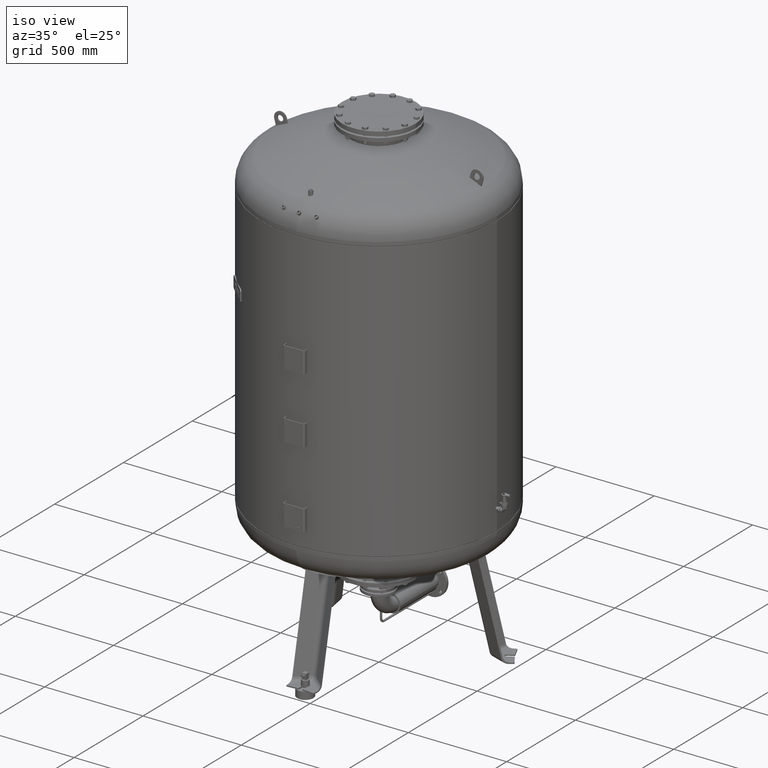
[diagram: clean part render]
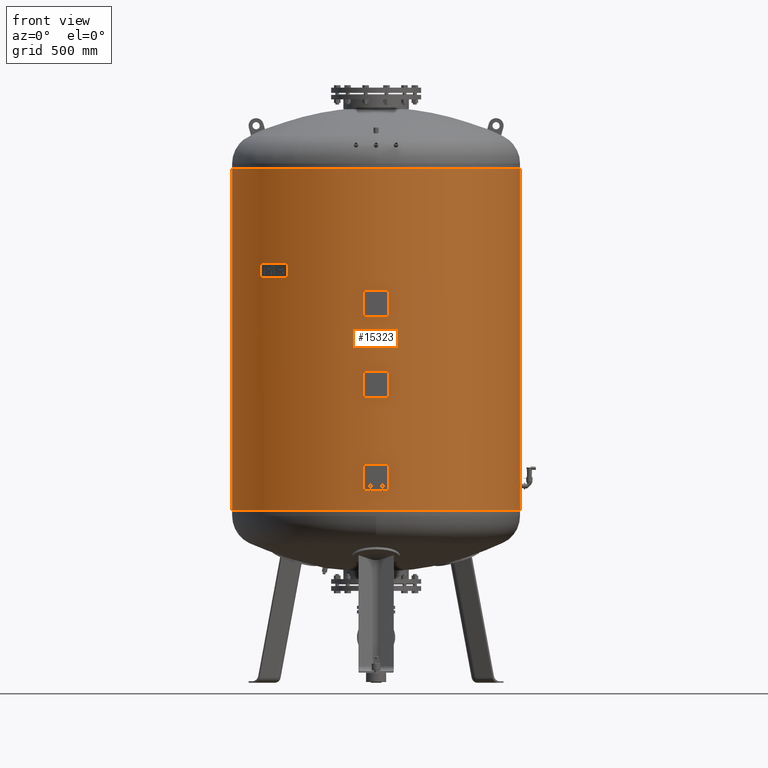
[diagram: tour spotlight — one face highlighted and labeled with its STEP entity id]
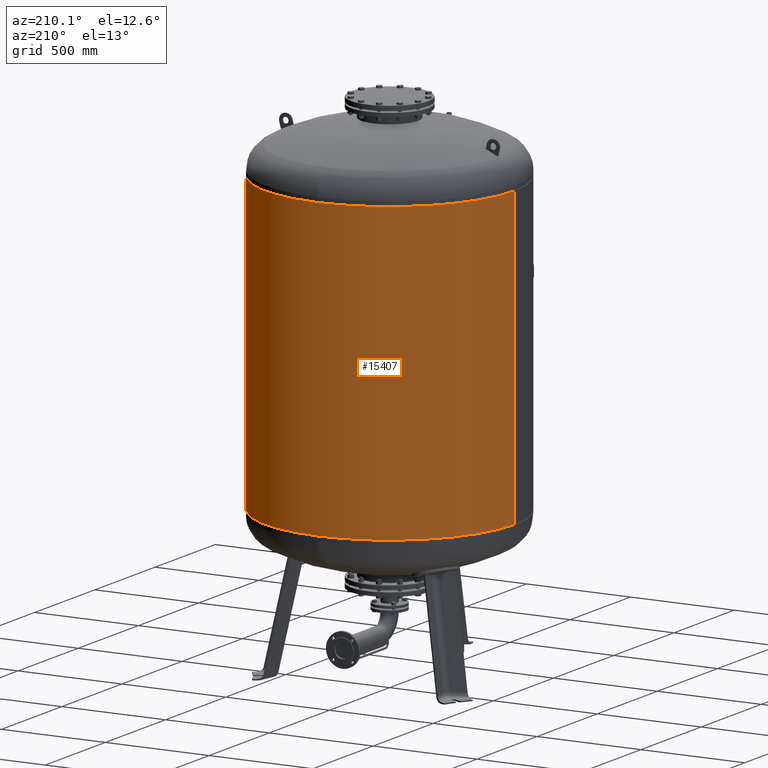
[diagram: tour spotlight — one face highlighted and labeled with its STEP entity id]
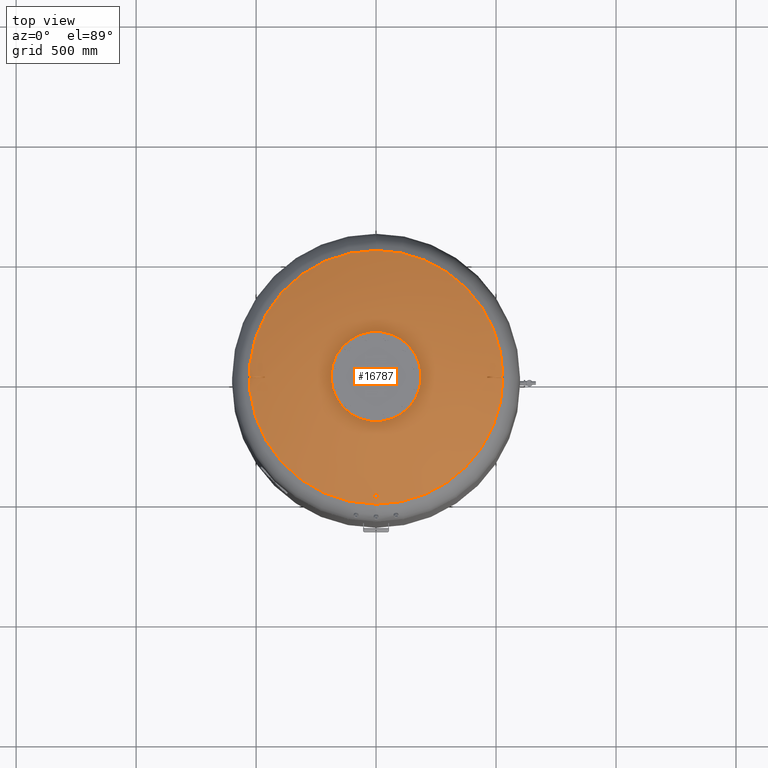
[diagram: tour spotlight — one face highlighted and labeled with its STEP entity id]
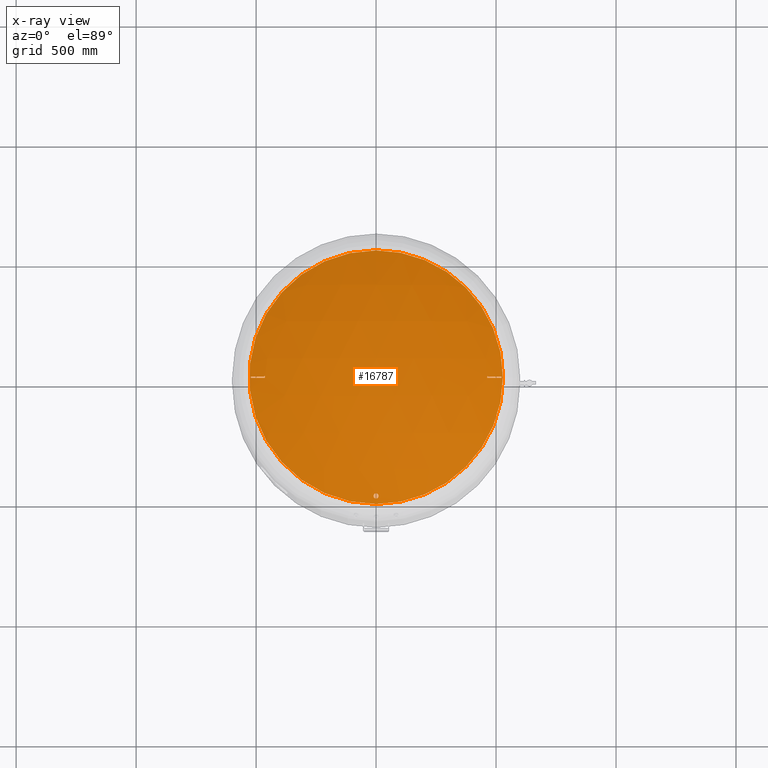
[diagram: x-ray of the same camera — body ghosted, this tour face saturated]
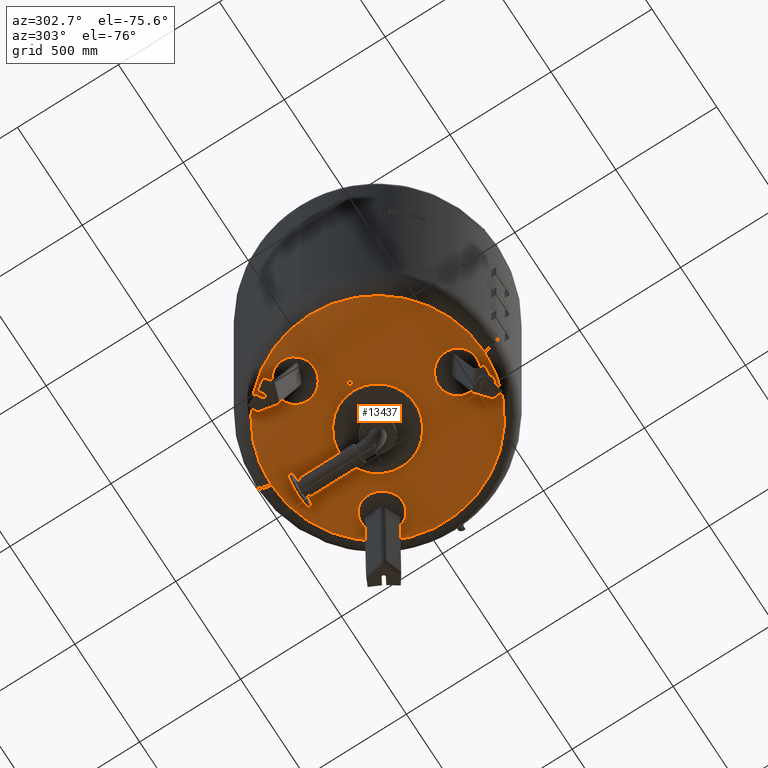
[diagram: tour spotlight — one face highlighted and labeled with its STEP entity id]
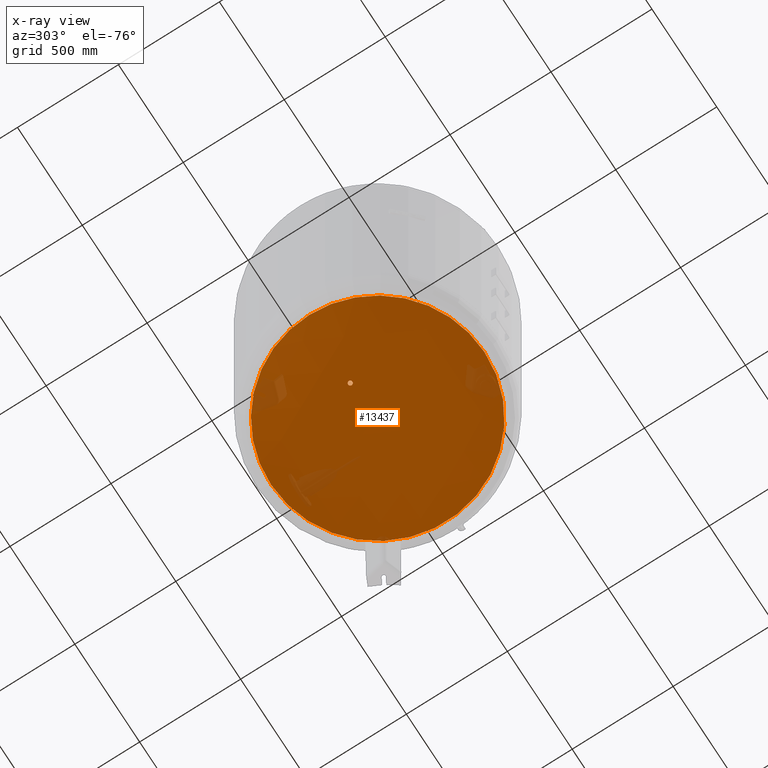
[diagram: x-ray of the same camera — body ghosted, this tour face saturated]
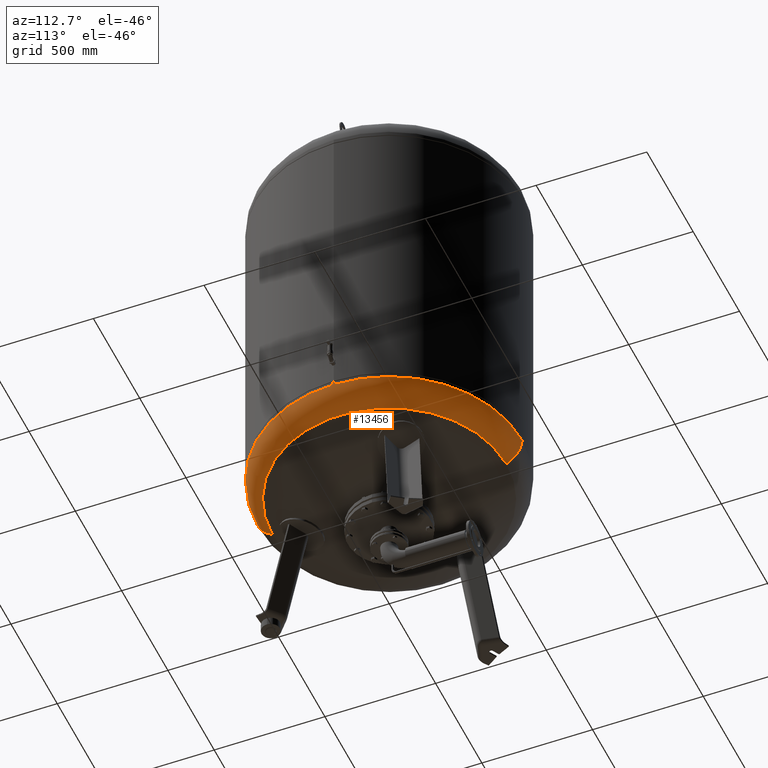
[diagram: tour spotlight — one face highlighted and labeled with its STEP entity id]
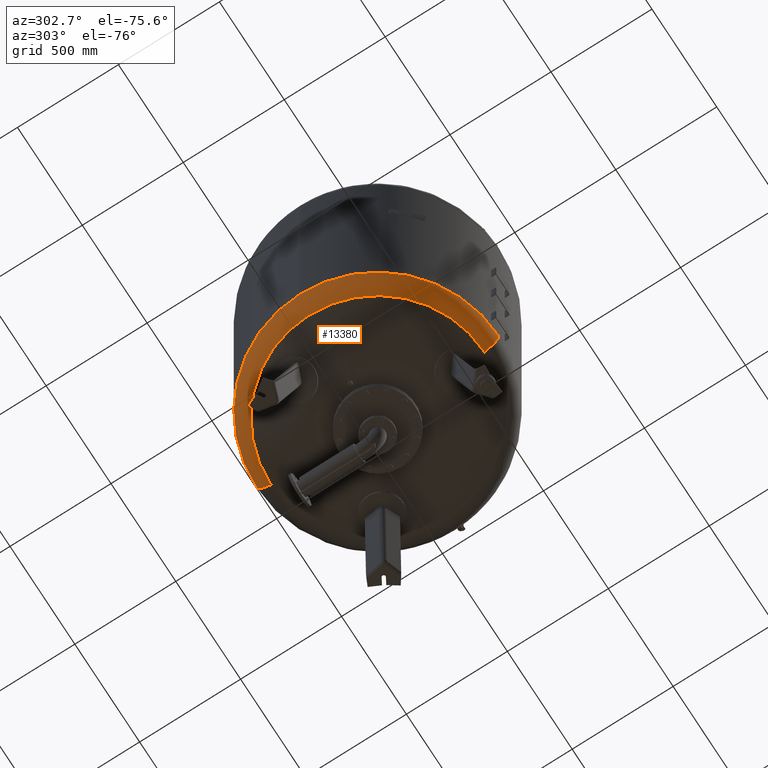
[diagram: tour spotlight — one face highlighted and labeled with its STEP entity id]
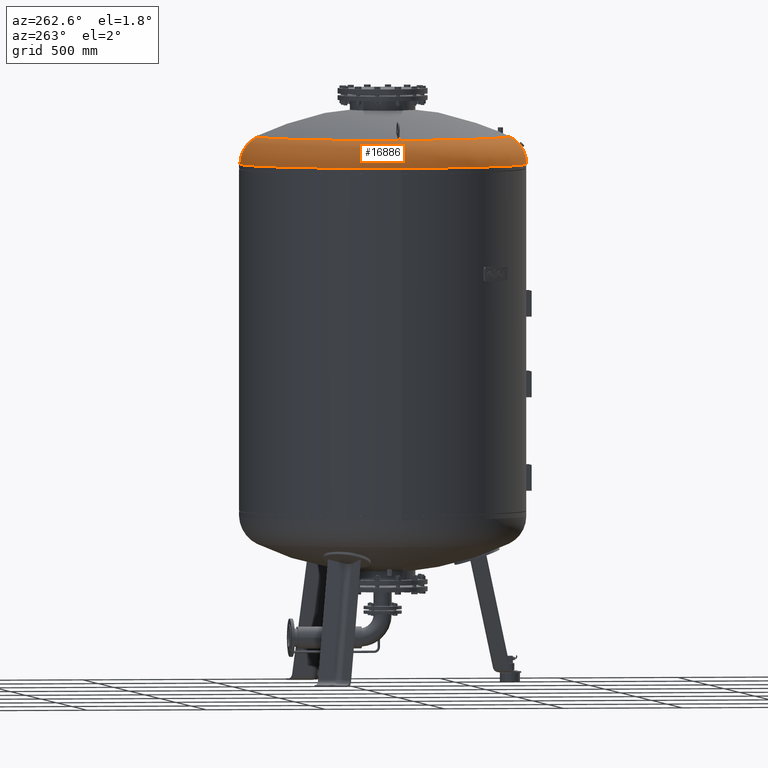
[diagram: tour spotlight — one face highlighted and labeled with its STEP entity id]
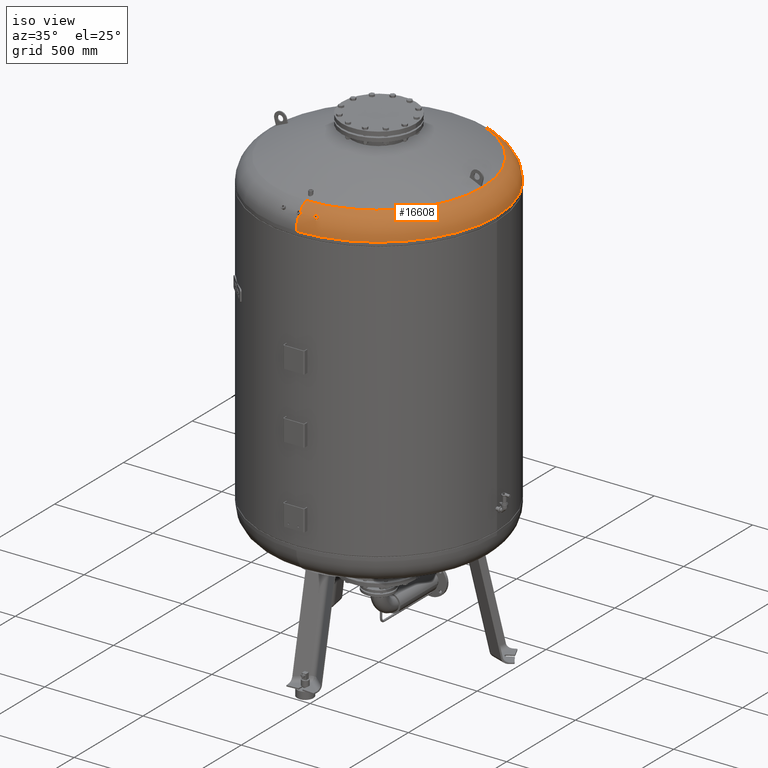
[diagram: tour spotlight — one face highlighted and labeled with its STEP entity id]
A machine part: a face-by-face anatomy tour. The part has 1189 B-rep faces; the first image is the clean iso view, then the 8 largest visible faces are spotlighted one at a time (largest first), each with its STEP entity span.

Face 1 — front view, entity #15323. In plain terms, the highlighted cylindrical surface (partial cylindrical patch) has radius 600 mm, axis along (0, 0, 1).
Definition (entity closure, byte-faithful):
#15282=CARTESIAN_POINT('',(8.309455E-015,0.0,1781.0));
#15283=DIRECTION('',(2.301788E-017,0.0,1.0));
#15284=DIRECTION('',(1.0,0.0,0.0));
#15285=AXIS2_PLACEMENT_3D('',#15282,#15283,#15284);
#15286=CYLINDRICAL_SURFACE('',#15285,600.000000000000570);
#15287=CARTESIAN_POINT('',(600.000000000000800,0.0,2142.0));
#15288=VERTEX_POINT('',#15287);
#15289=CARTESIAN_POINT('',(600.0,0.0,717.999999999999660));
#15290=VERTEX_POINT('',#15289);
#15291=CARTESIAN_POINT('',(600.000000000000800,0.0,2142.0));
#15292=DIRECTION('',(0.0,0.0,-1.0));
#15293=VECTOR('',#15292,1424.000000000000500);
#15294=LINE('',#15291,#15293);
#15295=EDGE_CURVE('',#15288,#15290,#15294,.T.);
#15296=ORIENTED_EDGE('',*,*,#15295,.F.);
#15297=CARTESIAN_POINT('',(-600.000000000000570,-7.347638E-014,2142.0));
#15298=VERTEX_POINT('',#15297);
#15299=CARTESIAN_POINT('',(1.661891E-014,0.0,2142.0));
#15300=DIRECTION('',(0.0,0.0,1.0));
#15301=DIRECTION('',(1.0,0.0,0.0));
#15302=AXIS2_PLACEMENT_3D('',#15299,#15300,#15301);
#15303=CIRCLE('',#15302,600.000000000000800);
#15304=EDGE_CURVE('',#15298,#15288,#15303,.T.);
#15305=ORIENTED_EDGE('',*,*,#15304,.F.);
#15306=CARTESIAN_POINT('',(-599.999999999999890,-7.347638E-014,717.999999999999660));
#15307=VERTEX_POINT('',#15306);
#15308=CARTESIAN_POINT('',(-600.000000000000570,-7.347638E-014,2142.0));
#15309=DIRECTION('',(0.0,0.0,-1.0));
#15310=VECTOR('',#15309,1424.000000000000500);
#15311=LINE('',#15308,#15310);
#15312=EDGE_CURVE('',#15298,#15307,#15311,.T.);
#15313=ORIENTED_EDGE('',*,*,#15312,.T.);
#15314=CARTESIAN_POINT('',(-1.661891E-014,0.0,717.999999999999550));
#15315=DIRECTION('',(0.0,0.0,1.0));
#15316=DIRECTION('',(1.0,0.0,0.0));
#15317=AXIS2_PLACEMENT_3D('',#15314,#15315,#15316);
#15318=CIRCLE('',#15317,600.0);
#15319=EDGE_CURVE('',#15307,#15290,#15318,.T.);
#15320=ORIENTED_EDGE('',*,*,#15319,.T.);
#15321=EDGE_LOOP('',(#15296,#15305,#15313,#15320));
#15322=FACE_OUTER_BOUND('',#15321,.T.);
#15323=ADVANCED_FACE('',(#15322),#15286,.T.);

Face 2 — auxiliary view, entity #15407. In plain terms, the highlighted cylindrical surface (partial cylindrical patch) has radius 600 mm, axis along (0, 0, 1).
Definition (entity closure, byte-faithful):
#15287=CARTESIAN_POINT('',(600.000000000000800,0.0,2142.0));
#15288=VERTEX_POINT('',#15287);
#15289=CARTESIAN_POINT('',(600.0,0.0,717.999999999999660));
#15290=VERTEX_POINT('',#15289);
#15291=CARTESIAN_POINT('',(600.000000000000800,0.0,2142.0));
#15292=DIRECTION('',(0.0,0.0,-1.0));
#15293=VECTOR('',#15292,1424.000000000000500);
#15294=LINE('',#15291,#15293);
#15295=EDGE_CURVE('',#15288,#15290,#15294,.T.);
#15297=CARTESIAN_POINT('',(-600.000000000000570,-7.347638E-014,2142.0));
#15298=VERTEX_POINT('',#15297);
#15306=CARTESIAN_POINT('',(-599.999999999999890,-7.347638E-014,717.999999999999660));
#15307=VERTEX_POINT('',#15306);
#15308=CARTESIAN_POINT('',(-600.000000000000570,-7.347638E-014,2142.0));
#15309=DIRECTION('',(0.0,0.0,-1.0));
#15310=VECTOR('',#15309,1424.000000000000500);
#15311=LINE('',#15308,#15310);
#15312=EDGE_CURVE('',#15298,#15307,#15311,.T.);
#15380=CARTESIAN_POINT('',(-1.661891E-014,0.0,717.999999999999550));
#15381=DIRECTION('',(0.0,0.0,1.0));
#15382=DIRECTION('',(1.0,0.0,0.0));
#15383=AXIS2_PLACEMENT_3D('',#15380,#15381,#15382);
#15384=CIRCLE('',#15383,600.0);
#15385=EDGE_CURVE('',#15290,#15307,#15384,.T.);
#15390=CARTESIAN_POINT('',(8.309455E-015,0.0,1781.0));
#15391=DIRECTION('',(2.301788E-017,0.0,1.0));
#15392=DIRECTION('',(1.0,0.0,0.0));
#15393=AXIS2_PLACEMENT_3D('',#15390,#15391,#15392);
#15394=CYLINDRICAL_SURFACE('',#15393,600.000000000000570);
#15395=ORIENTED_EDGE('',*,*,#15295,.T.);
#15396=ORIENTED_EDGE('',*,*,#15385,.T.);
#15397=ORIENTED_EDGE('',*,*,#15312,.F.);
#15398=CARTESIAN_POINT('',(1.661891E-014,0.0,2142.0));
#15399=DIRECTION('',(0.0,0.0,1.0));
#15400=DIRECTION('',(1.0,0.0,0.0));
#15401=AXIS2_PLACEMENT_3D('',#15398,#15399,#15400);
#15402=CIRCLE('',#15401,600.000000000000800);
#15403=EDGE_CURVE('',#15288,#15298,#15402,.T.);
#15404=ORIENTED_EDGE('',*,*,#15403,.F.);
#15405=EDGE_LOOP('',(#15395,#15396,#15397,#15404));
#15406=FACE_OUTER_BOUND('',#15405,.T.);
#15407=ADVANCED_FACE('',(#15406),#15394,.T.);

Face 3 — top view, entity #16787. An x-ray twin of the same camera follows (body ghosted, this face saturated) — the face is partly hidden behind the body. In plain terms, the highlighted spherical surface has radius 1207 mm.
Definition (entity closure, byte-faithful):
#15569=CARTESIAN_POINT('',(-3.908790E-014,-505.650000000000260,2288.977681113990900));
#15570=VERTEX_POINT('',#15569);
#15586=CARTESIAN_POINT('',(-3.643333E-014,-484.350000000000310,2298.556003782712200));
#15587=VERTEX_POINT('',#15586);
#15594=CARTESIAN_POINT('',(-3.643333E-014,-484.350000000000310,2298.556003782712200));
#15595=CARTESIAN_POINT('',(-0.665611636080587,-484.350000000000310,2298.556003782712200));
#15596=CARTESIAN_POINT('',(-1.351712007087174,-484.413449330400450,2298.527596291778100));
#15597=CARTESIAN_POINT('',(-2.711455124781883,-484.677684778344770,2298.409278534069900));
#15598=CARTESIAN_POINT('',(-3.385112822109979,-484.878406691486020,2298.319396709681300));
#15599=CARTESIAN_POINT('',(-4.671983453209512,-485.404260841615380,2298.083876063063600));
#15600=CARTESIAN_POINT('',(-5.286383442477947,-485.729841940405830,2297.938035283821600));
#15601=CARTESIAN_POINT('',(-6.418662963042159,-486.474599944024990,2297.604341560041600));
#15602=CARTESIAN_POINT('',(-6.936540506419686,-486.893778895747520,2297.416486438550200));
#15603=CARTESIAN_POINT('',(-7.900192687897327,-487.823356474835690,2296.999774688893900));
#15604=CARTESIAN_POINT('',(-8.369020497877676,-488.373824638455970,2296.752944631033200));
#15605=CARTESIAN_POINT('',(-9.188808647865463,-489.567459190703860,2296.217505560420200));
#15606=CARTESIAN_POINT('',(-9.539857037879660,-490.210574780593670,2295.928918118605900));
#15607=CARTESIAN_POINT('',(-10.100625147679995,-491.546764270494920,2295.329066489736800));
#15608=CARTESIAN_POINT('',(-10.310736765037014,-492.240729558734700,2295.017401333808700));
#15609=CARTESIAN_POINT('',(-10.585453694089770,-493.631410911690980,2294.392563213996700));
#15610=CARTESIAN_POINT('',(-10.650000000000041,-494.328136578031940,2294.079385679025100));
#15611=CARTESIAN_POINT('',(-10.650000000000041,-495.672249771666320,2293.474961828123900));
#15612=CARTESIAN_POINT('',(-10.585380396556669,-496.369268012084660,2293.161397323186500));
#15613=CARTESIAN_POINT('',(-10.310462392525936,-497.760351114899380,2292.535323620084000));
#15614=CARTESIAN_POINT('',(-10.100224561864295,-498.454426017125230,2292.222810133959700));
#15615=CARTESIAN_POINT('',(-9.539219073899464,-499.790709135052230,2291.620892770933100));
#15616=CARTESIAN_POINT('',(-9.188061671035115,-500.433806541516050,2291.331089151720300));
#15617=CARTESIAN_POINT('',(-8.368086172563105,-501.627357286810650,2290.793043409988500));
#15618=CARTESIAN_POINT('',(-7.899179737395413,-502.177760642695720,2290.544825043460200));
#15619=CARTESIAN_POINT('',(-6.935591451669570,-503.107009891746540,2290.125643340669700));
#15620=CARTESIAN_POINT('',(-6.417878505985910,-503.525973237725740,2289.936594437422200));
#15621=CARTESIAN_POINT('',(-5.285911664195274,-504.270411104392510,2289.600610399233600));
#15622=CARTESIAN_POINT('',(-4.671659030031402,-504.595887700676880,2289.453675611559900));
#15623=CARTESIAN_POINT('',(-3.385018268838375,-505.121615967432380,2289.216307020834400));
#15624=CARTESIAN_POINT('',(-2.711440963249321,-505.322316471515020,2289.125671514436800));
#15625=CARTESIAN_POINT('',(-1.351770687093105,-505.586540768529060,2289.006343822394200));
#15626=CARTESIAN_POINT('',(-0.665662584297589,-505.650000000000260,2288.977681113990900));
#15627=CARTESIAN_POINT('',(-3.908790E-014,-505.650000000000260,2288.977681113990900));
#15628=B_SPLINE_CURVE_WITH_KNOTS('',3,(#15594,#15595,#15596,#15597,#15598,#15599,#15600,#15601,#15602,#15603,#15604,#15605,#15606,#15607,#15608,#15609,#15610,#15611,#15612,#15613,#15614,#15615,#15616,#15617,#15618,#15619,#15620,#15621,#15622,#15623,#15624,#15625,#15626,#15627),.UNSPECIFIED.,.F.,.U.,(4,2,2,2,2,2,2,2,2,2,2,2,2,2,2,2,4),(33.660410364601788,35.657245272843440,37.654080181085092,39.650915089326745,41.647749997568390,43.857754539841181,46.067759082113966,48.277763624386751,50.487768166659535,52.699043554402891,54.910318942146247,57.121594329889604,59.332869717632960,61.329857470525610,63.326845223418267,65.323832976310925,67.320820729203575),.UNSPECIFIED.);
#15629=EDGE_CURVE('',#15587,#15570,#15628,.T.);
#16518=CARTESIAN_POINT('',(1.036830E-013,528.621296296296240,2278.084570483804800));
#16519=VERTEX_POINT('',#16518);
#16527=CARTESIAN_POINT('',(528.621296296296240,-2.239550E-014,2278.084570483804800));
#16528=VERTEX_POINT('',#16527);
#16529=CARTESIAN_POINT('',(3.410787E-015,-2.239550E-014,2278.084570483804800));
#16530=DIRECTION('',(0.0,0.0,-1.0));
#16531=DIRECTION('',(1.0,0.0,0.0));
#16532=AXIS2_PLACEMENT_3D('',#16529,#16530,#16531);
#16533=CIRCLE('',#16532,528.621296296296240);
#16534=EDGE_CURVE('',#16519,#16528,#16533,.T.);
#16536=CARTESIAN_POINT('',(3.894773E-014,-528.621296296296240,2278.084570483804800));
#16537=VERTEX_POINT('',#16536);
#16538=CARTESIAN_POINT('',(3.410787E-015,-2.239550E-014,2278.084570483804800));
#16539=DIRECTION('',(0.0,0.0,-1.0));
#16540=DIRECTION('',(1.0,0.0,0.0));
#16541=AXIS2_PLACEMENT_3D('',#16538,#16539,#16540);
#16542=CIRCLE('',#16541,528.621296296296240);
#16543=EDGE_CURVE('',#16528,#16537,#16542,.T.);
#16655=CARTESIAN_POINT('',(1.237204E-013,-2.217223E-013,1193.0));
#16656=DIRECTION('',(0.0,-1.0,0.0));
#16657=DIRECTION('',(-1.0,0.0,0.0));
#16658=AXIS2_PLACEMENT_3D('',#16655,#16656,#16657);
#16659=SPHERICAL_SURFACE('',#16658,1207.000000000000200);
#16660=ORIENTED_EDGE('',*,*,#16543,.F.);
#16661=ORIENTED_EDGE('',*,*,#16534,.F.);
#16662=CARTESIAN_POINT('',(3.410787E-015,-2.239550E-014,2278.084570483804800));
#16663=DIRECTION('',(0.0,0.0,-1.0));
#16664=DIRECTION('',(1.0,0.0,0.0));
#16665=AXIS2_PLACEMENT_3D('',#16662,#16663,#16664);
#16666=CIRCLE('',#16665,528.621296296296240);
#16667=EDGE_CURVE('',#16537,#16519,#16666,.T.);
#16668=ORIENTED_EDGE('',*,*,#16667,.F.);
#16669=EDGE_LOOP('',(#16660,#16661,#16668));
#16670=FACE_OUTER_BOUND('',#16669,.T.);
#16671=CARTESIAN_POINT('',(463.451600218966230,-3.000000000000292,2307.474142479079100));
#16672=VERTEX_POINT('',#16671);
#16673=CARTESIAN_POINT('',(463.451600218966350,2.999999999999727,2307.474142479080000));
#16674=VERTEX_POINT('',#16673);
#16675=CARTESIAN_POINT('',(143.673995061822890,7.801844E-013,1153.196972395376000));
#16676=DIRECTION('',(-0.963701753162816,-6.720348E-015,0.266981143436978));
#16677=DIRECTION('',(-0.266981143436977,0.0,-0.963701753162815));
#16678=AXIS2_PLACEMENT_3D('',#16675,#16676,#16677);
#16679=CIRCLE('',#16678,1197.757280143385700);
#16680=EDGE_CURVE('',#16672,#16674,#16679,.T.);
#16681=ORIENTED_EDGE('',*,*,#16680,.T.);
#16682=CARTESIAN_POINT('',(521.618748390259730,3.000000000000095,2281.464000933324300));
#16683=VERTEX_POINT('',#16682);
#16684=CARTESIAN_POINT('',(1.015543E-013,2.999999999995042,1193.0));
#16685=DIRECTION('',(0.0,1.0,0.0));
#16686=DIRECTION('',(0.0,0.0,-1.0));
#16687=AXIS2_PLACEMENT_3D('',#16684,#16685,#16686);
#16688=CIRCLE('',#16687,1206.996271742378000);
#16689=EDGE_CURVE('',#16674,#16683,#16688,.T.);
#16690=ORIENTED_EDGE('',*,*,#16689,.T.);
#16691=CARTESIAN_POINT('',(521.618748390259610,-2.999999999999862,2281.464000933324300));
#16692=VERTEX_POINT('',#16691);
#16693=CARTESIAN_POINT('',(204.387205511080450,1.203566E-012,1136.377160358846400));
#16694=DIRECTION('',(0.963701753162815,6.720348E-015,-0.266981143436977));
#16695=DIRECTION('',(0.266981143436977,0.0,0.963701753162815));
#16696=AXIS2_PLACEMENT_3D('',#16693,#16694,#16695);
#16697=CIRCLE('',#16696,1188.220823018324600);
#16698=EDGE_CURVE('',#16683,#16692,#16697,.T.);
#16699=ORIENTED_EDGE('',*,*,#16698,.T.);
#16700=CARTESIAN_POINT('',(1.458865E-013,-3.000000000004973,1193.0));
#16701=DIRECTION('',(0.0,-1.0,0.0));
#16702=DIRECTION('',(0.0,0.0,1.0));
#16703=AXIS2_PLACEMENT_3D('',#16700,#16701,#16702);
#16704=CIRCLE('',#16703,1206.996271742378000);
#16705=EDGE_CURVE('',#16692,#16672,#16704,.T.);
#16706=ORIENTED_EDGE('',*,*,#16705,.T.);
#16707=EDGE_LOOP('',(#16681,#16690,#16699,#16706));
#16708=FACE_BOUND('',#16707,.T.);
#16709=CARTESIAN_POINT('',(-463.451600218966290,2.999999999999727,2307.474142479079500));
#16710=VERTEX_POINT('',#16709);
#16711=CARTESIAN_POINT('',(-463.451600218966230,-3.000000000000292,2307.474142479079100));
#16712=VERTEX_POINT('',#16711);
#16713=CARTESIAN_POINT('',(-143.673995061822890,7.801844E-013,1153.196972395376000));
#16714=DIRECTION('',(0.963701753162816,-6.720348E-015,0.266981143436978));
#16715=DIRECTION('',(-0.266981143436977,0.0,0.963701753162815));
#16716=AXIS2_PLACEMENT_3D('',#16713,#16714,#16715);
#16717=CIRCLE('',#16716,1197.757280143385700);
#16718=EDGE_CURVE('',#16710,#16712,#16717,.T.);
#16719=ORIENTED_EDGE('',*,*,#16718,.T.);
#16720=CARTESIAN_POINT('',(-521.618748390259610,-2.999999999999862,2281.464000933324300));
#16721=VERTEX_POINT('',#16720);
#16722=CARTESIAN_POINT('',(1.015543E-013,-3.000000000004973,1193.0));
#16723=DIRECTION('',(0.0,-1.0,0.0));
#16724=DIRECTION('',(0.0,0.0,1.0));
#16725=AXIS2_PLACEMENT_3D('',#16722,#16723,#16724);
#16726=CIRCLE('',#16725,1206.996271742378000);
#16727=EDGE_CURVE('',#16712,#16721,#16726,.T.);
#16728=ORIENTED_EDGE('',*,*,#16727,.T.);
#16729=CARTESIAN_POINT('',(-521.618748390259730,3.000000000000095,2281.464000933324300));
#16730=VERTEX_POINT('',#16729);
#16731=CARTESIAN_POINT('',(-204.387205511080400,1.203566E-012,1136.377160358846400));
#16732=DIRECTION('',(-0.963701753162815,6.720348E-015,-0.266981143436977));
#16733=DIRECTION('',(0.266981143436977,0.0,-0.963701753162815));
#16734=AXIS2_PLACEMENT_3D('',#16731,#16732,#16733);
#16735=CIRCLE('',#16734,1188.220823018324600);
#16736=EDGE_CURVE('',#16721,#16730,#16735,.T.);
#16737=ORIENTED_EDGE('',*,*,#16736,.T.);
#16738=CARTESIAN_POINT('',(1.458865E-013,2.999999999995042,1193.0));
#16739=DIRECTION('',(0.0,1.0,0.0));
#16740=DIRECTION('',(0.0,0.0,-1.0));
#16741=AXIS2_PLACEMENT_3D('',#16738,#16739,#16740);
#16742=CIRCLE('',#16741,1206.996271742378000);
#16743=EDGE_CURVE('',#16730,#16710,#16742,.T.);
#16744=ORIENTED_EDGE('',*,*,#16743,.T.);
#16745=EDGE_LOOP('',(#16719,#16728,#16737,#16744));
#16746=FACE_BOUND('',#16745,.T.);
#16747=CARTESIAN_POINT('',(-3.908790E-014,-505.650000000000260,2288.977681113990900));
#16748=CARTESIAN_POINT('',(0.665662584297512,-505.650000000000260,2288.977681113990900));
#16749=CARTESIAN_POINT('',(1.351770687093029,-505.586540768529060,2289.006343822394200));
#16750=CARTESIAN_POINT('',(2.711440963249246,-505.322316471515020,2289.125671514436800));
#16751=CARTESIAN_POINT('',(3.385018268838298,-505.121615967432380,2289.216307020834400));
#16752=CARTESIAN_POINT('',(4.671659030031323,-504.595887700676880,2289.453675611559900));
#16753=CARTESIAN_POINT('',(5.285911664195194,-504.270411104392510,2289.600610399233600));
#16754=CARTESIAN_POINT('',(6.417878505985831,-503.525973237725740,2289.936594437422200));
#16755=CARTESIAN_POINT('',(6.935591451669492,-503.107009891746540,2290.125643340669700));
#16756=CARTESIAN_POINT('',(7.899179737395336,-502.177760642695720,2290.544825043460200));
#16757=CARTESIAN_POINT('',(8.368086172563030,-501.627357286810650,2290.793043409988500));
#16758=CARTESIAN_POINT('',(9.188061671035039,-500.433806541516050,2291.331089151720300));
#16759=CARTESIAN_POINT('',(9.539219073899387,-499.790709135052230,2291.620892770933100));
#16760=CARTESIAN_POINT('',(10.100224561864218,-498.454426017125230,2292.222810133959700));
#16761=CARTESIAN_POINT('',(10.310462392525860,-497.760351114899380,2292.535323620084000));
#16762=CARTESIAN_POINT('',(10.585380396556593,-496.369268012084660,2293.161397323186500));
#16763=CARTESIAN_POINT('',(10.649999999999967,-495.672249771666320,2293.474961828123900));
#16764=CARTESIAN_POINT('',(10.649999999999967,-494.328136578031940,2294.079385679025100));
#16765=CARTESIAN_POINT('',(10.585453694089695,-493.631410911691030,2294.392563213996700));
#16766=CARTESIAN_POINT('',(10.310736765036935,-492.240729558734700,2295.017401333808700));
#16767=CARTESIAN_POINT('',(10.100625147679885,-491.546764270494800,2295.329066489736800));
#16768=CARTESIAN_POINT('',(9.539857037879532,-490.210574780593560,2295.928918118605900));
#16769=CARTESIAN_POINT('',(9.188808647865377,-489.567459190703860,2296.217505560420200));
#16770=CARTESIAN_POINT('',(8.369020497877601,-488.373824638455970,2296.752944631033200));
#16771=CARTESIAN_POINT('',(7.900192687897256,-487.823356474835690,2296.999774688893900));
#16772=CARTESIAN_POINT('',(6.936540506419615,-486.893778895747520,2297.416486438550200));
#16773=CARTESIAN_POINT('',(6.418662963042084,-486.474599944024990,2297.604341560041600));
#16774=CARTESIAN_POINT('',(5.286383442477869,-485.729841940405830,2297.938035283821600));
#16775=CARTESIAN_POINT('',(4.671983453209435,-485.404260841615380,2298.083876063063600));
#16776=CARTESIAN_POINT('',(3.385112822109905,-484.878406691486020,2298.319396709681300));
#16777=CARTESIAN_POINT('',(2.711455124781810,-484.677684778344770,2298.409278534069900));
#16778=CARTESIAN_POINT('',(1.351712007087104,-484.413449330400450,2298.527596291778100));
#16779=CARTESIAN_POINT('',(0.665611636080514,-484.350000000000310,2298.556003782712200));
#16780=CARTESIAN_POINT('',(-3.643333E-014,-484.350000000000310,2298.556003782712200));
#16781=B_SPLINE_CURVE_WITH_KNOTS('',3,(#16747,#16748,#16749,#16750,#16751,#16752,#16753,#16754,#16755,#16756,#16757,#16758,#16759,#16760,#16761,#16762,#16763,#16764,#16765,#16766,#16767,#16768,#16769,#16770,#16771,#16772,#16773,#16774,#16775,#16776,#16777,#16778,#16779,#16780),.UNSPECIFIED.,.F.,.U.,(4,2,2,2,2,2,2,2,2,2,2,2,2,2,2,2,4),(0.0,1.996987752892653,3.993975505785305,5.990963258677958,7.987951011570610,10.199226399313968,12.410501787057324,14.621777174800682,16.833052562544040,19.043057104816825,21.253061647089613,23.463066189362401,25.673070731635185,27.669905639876838,29.666740548118486,31.663575456360135,33.660410364601788),.UNSPECIFIED.);
#16782=EDGE_CURVE('',#15570,#15587,#16781,.T.);
#16783=ORIENTED_EDGE('',*,*,#16782,.F.);
#16784=ORIENTED_EDGE('',*,*,#15629,.F.);
#16785=EDGE_LOOP('',(#16783,#16784));
#16786=FACE_BOUND('',#16785,.T.);
#16787=ADVANCED_FACE('',(#16670,#16708,#16746,#16786),#16659,.T.);

Face 4 — auxiliary view, entity #13437. An x-ray twin of the same camera follows (body ghosted, this face saturated) — the face is partly hidden behind the body. In plain terms, the highlighted spherical surface has radius 1207 mm.
Definition (entity closure, byte-faithful):
#12823=CARTESIAN_POINT('',(-211.937198401616570,10.650000000000025,478.800437033544990));
#12824=VERTEX_POINT('',#12823);
#12840=CARTESIAN_POINT('',(-211.937198401616510,-10.649999999999979,478.800437033544990));
#12841=VERTEX_POINT('',#12840);
#12848=CARTESIAN_POINT('',(-211.937198401616510,-10.649999999999979,478.800437033544990));
#12849=CARTESIAN_POINT('',(-212.596029678045710,-10.649999999999979,478.917951682849490));
#12850=CARTESIAN_POINT('',(-213.277383817210730,-10.586015634619065,479.039484704573110));
#12851=CARTESIAN_POINT('',(-214.632812812199460,-10.316454420028741,479.281254459445170));
#12852=CARTESIAN_POINT('',(-215.306898768327130,-10.110935162849934,479.401493169858780));
#12853=CARTESIAN_POINT('',(-216.599832825596370,-9.567334072840172,479.632119505102420));
#12854=CARTESIAN_POINT('',(-217.219708994972820,-9.228819727733196,479.742690503765460));
#12855=CARTESIAN_POINT('',(-218.366098977492160,-8.446425587689298,479.947180301647620));
#12856=CARTESIAN_POINT('',(-218.892580278450000,-8.002496637540414,480.041093291367360));
#12857=CARTESIAN_POINT('',(-219.824105465379660,-7.056765513726695,480.207258310295630));
#12858=CARTESIAN_POINT('',(-220.261052221517130,-6.522745299144131,480.285201165612080));
#12859=CARTESIAN_POINT('',(-221.031256683779190,-5.359849321490238,480.422591362641240));
#12860=CARTESIAN_POINT('',(-221.364561974932540,-4.731006077020704,480.482047181678750));
#12861=CARTESIAN_POINT('',(-221.899853661642790,-3.419269367759577,480.577534088734980));
#12862=CARTESIAN_POINT('',(-222.102266731446090,-2.735329690712802,480.613641280984720));
#12863=CARTESIAN_POINT('',(-222.367770748517780,-1.359994895139886,480.661002909983100));
#12864=CARTESIAN_POINT('',(-222.430804902588420,-0.668588464558689,480.672247213955190));
#12865=CARTESIAN_POINT('',(-222.430804902588420,0.668588464558728,480.672247213955190));
#12866=CARTESIAN_POINT('',(-222.367770748517780,1.359994895139923,480.661002909983100));
#12867=CARTESIAN_POINT('',(-222.102266731446090,2.735329690712840,480.613641280984720));
#12868=CARTESIAN_POINT('',(-221.899853661642790,3.419269367759616,480.577534088734980));
#12869=CARTESIAN_POINT('',(-221.364561974932540,4.731006077020746,480.482047181678750));
#12870=CARTESIAN_POINT('',(-221.031256683779190,5.359849321490282,480.422591362641240));
#12871=CARTESIAN_POINT('',(-220.261052221517160,6.522745299144174,480.285201165612080));
#12872=CARTESIAN_POINT('',(-219.824105465379660,7.056765513726734,480.207258310295630));
#12873=CARTESIAN_POINT('',(-218.892580278450000,8.002496637540453,480.041093291367360));
#12874=CARTESIAN_POINT('',(-218.366098977492160,8.446425587689342,479.947180301647620));
#12875=CARTESIAN_POINT('',(-217.219708994972820,9.228819727733242,479.742690503765460));
#12876=CARTESIAN_POINT('',(-216.599832825596370,9.567334072840220,479.632119505102420));
#12877=CARTESIAN_POINT('',(-215.306898768327130,10.110935162849984,479.401493169858780));
#12878=CARTESIAN_POINT('',(-214.632812812199460,10.316454420028787,479.281254459445170));
#12879=CARTESIAN_POINT('',(-213.277383817210730,10.586015634619111,479.039484704573110));
#12880=CARTESIAN_POINT('',(-212.596029678045770,10.650000000000025,478.917951682849490));
#12881=CARTESIAN_POINT('',(-211.937198401616570,10.650000000000025,478.800437033544990));
#12882=B_SPLINE_CURVE_WITH_KNOTS('',3,(#12848,#12849,#12850,#12851,#12852,#12853,#12854,#12855,#12856,#12857,#12858,#12859,#12860,#12861,#12862,#12863,#12864,#12865,#12866,#12867,#12868,#12869,#12870,#12871,#12872,#12873,#12874,#12875,#12876,#12877,#12878,#12879,#12880,#12881),.UNSPECIFIED.,.F.,.U.,(4,2,2,2,2,2,2,2,2,2,2,2,2,2,2,2,4),(32.107643846029333,34.115332838981743,36.123021831934153,38.130710824886563,40.138399817838973,42.144165211515102,44.149930605191223,46.155695998867344,48.161461392543472,50.167226786219594,52.172992179895715,54.178757573571843,56.184522967247965,58.192211960200382,60.199900953152792,62.207589946105202,64.215278939057612),.UNSPECIFIED.);
#12883=EDGE_CURVE('',#12841,#12824,#12882,.T.);
#13336=CARTESIAN_POINT('',(-5.387807E-014,-528.621296296296240,581.915429516194880));
#13337=VERTEX_POINT('',#13336);
#13353=CARTESIAN_POINT('',(-1.186134E-013,528.621296296296240,581.915429516195100));
#13354=VERTEX_POINT('',#13353);
#13362=CARTESIAN_POINT('',(-528.621296296296240,-2.239550E-014,581.915429516194990));
#13363=VERTEX_POINT('',#13362);
#13364=CARTESIAN_POINT('',(-1.834112E-014,-2.239550E-014,581.915429516194990));
#13365=DIRECTION('',(0.0,0.0,1.0));
#13366=DIRECTION('',(-1.0,0.0,0.0));
#13367=AXIS2_PLACEMENT_3D('',#13364,#13365,#13366);
#13368=CIRCLE('',#13367,528.621296296296240);
#13369=EDGE_CURVE('',#13354,#13363,#13368,.T.);
#13371=CARTESIAN_POINT('',(-1.834112E-014,-2.239550E-014,581.915429516194990));
#13372=DIRECTION('',(0.0,0.0,1.0));
#13373=DIRECTION('',(-1.0,0.0,0.0));
#13374=AXIS2_PLACEMENT_3D('',#13371,#13372,#13373);
#13375=CIRCLE('',#13374,528.621296296296240);
#13376=EDGE_CURVE('',#13363,#13337,#13375,.T.);
#13381=CARTESIAN_POINT('',(-2.715353E-013,-2.217223E-013,1667.0));
#13382=DIRECTION('',(0.0,-1.0,0.0));
#13383=DIRECTION('',(1.0,0.0,0.0));
#13384=AXIS2_PLACEMENT_3D('',#13381,#13382,#13383);
#13385=SPHERICAL_SURFACE('',#13384,1207.000000000000200);
#13386=ORIENTED_EDGE('',*,*,#13376,.F.);
#13387=ORIENTED_EDGE('',*,*,#13369,.F.);
#13388=CARTESIAN_POINT('',(-1.834112E-014,-2.239550E-014,581.915429516194990));
#13389=DIRECTION('',(0.0,0.0,1.0));
#13390=DIRECTION('',(-1.0,0.0,0.0));
#13391=AXIS2_PLACEMENT_3D('',#13388,#13389,#13390);
#13392=CIRCLE('',#13391,528.621296296296240);
#13393=EDGE_CURVE('',#13337,#13354,#13392,.T.);
#13394=ORIENTED_EDGE('',*,*,#13393,.F.);
#13395=EDGE_LOOP('',(#13386,#13387,#13394));
#13396=FACE_OUTER_BOUND('',#13395,.T.);
#13397=CARTESIAN_POINT('',(-211.937198401616570,10.650000000000025,478.800437033544990));
#13398=CARTESIAN_POINT('',(-211.278366798644700,10.650000000000025,478.682922325995610));
#13399=CARTESIAN_POINT('',(-210.597011985638180,10.586015572279237,478.561391197079960));
#13400=CARTESIAN_POINT('',(-209.241580899233780,10.316454188650635,478.319629306448750));
#13401=CARTESIAN_POINT('',(-208.567493525426840,10.110934830064672,478.199396562150010));
#13402=CARTESIAN_POINT('',(-207.274556053715710,9.567333533728142,477.968785256416200));
#13403=CARTESIAN_POINT('',(-206.654677884311810,9.228819099674476,477.858223318709520));
#13404=CARTESIAN_POINT('',(-205.508283646078330,8.446424795854346,477.653752978893750));
#13405=CARTESIAN_POINT('',(-204.981800091108310,8.002495773727080,477.559850365900560));
#13406=CARTESIAN_POINT('',(-204.050270747461350,7.056764700641967,477.393705425854990));
#13407=CARTESIAN_POINT('',(-203.613321883310870,6.522744627619373,477.315772963793680));
#13408=CARTESIAN_POINT('',(-202.843113389512750,5.359848914355192,477.178402249045460));
#13409=CARTESIAN_POINT('',(-202.509806177943290,4.731005793065519,477.118955498907100));
#13410=CARTESIAN_POINT('',(-201.974511267791570,3.419269272730928,477.023483646491800));
#13411=CARTESIAN_POINT('',(-201.772096889381830,2.735329661880099,476.987382437131490));
#13412=CARTESIAN_POINT('',(-201.506591128178510,1.359994930216837,476.940028731317230));
#13413=CARTESIAN_POINT('',(-201.443556538321960,0.668588497570564,476.928786362264650));
#13414=CARTESIAN_POINT('',(-201.443556538321960,-0.668588497570515,476.928786362264650));
#13415=CARTESIAN_POINT('',(-201.506591128178510,-1.359994930216788,476.940028731317230));
#13416=CARTESIAN_POINT('',(-201.772096889381830,-2.735329661880057,476.987382437131490));
#13417=CARTESIAN_POINT('',(-201.974511267791630,-3.419269272730879,477.023483646491800));
#13418=CARTESIAN_POINT('',(-202.509806177943290,-4.731005793065471,477.118955498907100));
#13419=CARTESIAN_POINT('',(-202.843113389512750,-5.359848914355157,477.178402249045460));
#13420=CARTESIAN_POINT('',(-203.613321883310870,-6.522744627619325,477.315772963793680));
#13421=CARTESIAN_POINT('',(-204.050270747461350,-7.056764700641919,477.393705425854990));
#13422=CARTESIAN_POINT('',(-204.981800091108310,-8.002495773727032,477.559850365900560));
#13423=CARTESIAN_POINT('',(-205.508283646078330,-8.446424795854298,477.653752978893750));
#13424=CARTESIAN_POINT('',(-206.654677884311810,-9.228819099674427,477.858223318709520));
#13425=CARTESIAN_POINT('',(-207.274556053715710,-9.567333533728096,477.968785256416200));
#13426=CARTESIAN_POINT('',(-208.567493525426870,-10.110934830064625,478.199396562150010));
#13427=CARTESIAN_POINT('',(-209.241580899233810,-10.316454188650594,478.319629306448750));
#13428=CARTESIAN_POINT('',(-210.597011985638180,-10.586015572279191,478.561391197079960));
#13429=CARTESIAN_POINT('',(-211.278366798644640,-10.649999999999979,478.682922325995610));
#13430=CARTESIAN_POINT('',(-211.937198401616510,-10.649999999999979,478.800437033544990));
#13431=B_SPLINE_CURVE_WITH_KNOTS('',3,(#13397,#13398,#13399,#13400,#13401,#13402,#13403,#13404,#13405,#13406,#13407,#13408,#13409,#13410,#13411,#13412,#13413,#13414,#13415,#13416,#13417,#13418,#13419,#13420,#13421,#13422,#13423,#13424,#13425,#13426,#13427,#13428,#13429,#13430),.UNSPECIFIED.,.F.,.U.,(4,2,2,2,2,2,2,2,2,2,2,2,2,2,2,2,4),(0.0,2.007689988042048,4.015379976084097,6.023069964126145,8.030759952168193,10.036525444879810,12.042290937591430,14.048056430303049,16.053821923014667,18.059587415726284,20.065352908437905,22.071118401149526,24.076883893861144,26.084573881903189,28.092263869945238,30.099953857987288,32.107643846029333),.UNSPECIFIED.);
#13432=EDGE_CURVE('',#12824,#12841,#13431,.T.);
#13433=ORIENTED_EDGE('',*,*,#13432,.F.);
#13434=ORIENTED_EDGE('',*,*,#12883,.F.);
#13435=EDGE_LOOP('',(#13433,#13434));
#13436=FACE_BOUND('',#13435,.T.);
#13437=ADVANCED_FACE('',(#13396,#13436),#13385,.T.);

Face 5 — auxiliary view, entity #13456. In plain terms, the highlighted toroidal blend (fillet) surface has major radius 473 mm and minor (blend) radius 127 mm.
Definition (entity closure, byte-faithful):
#13302=CARTESIAN_POINT('',(599.999999999999890,3.010780E-014,696.087542566272300));
#13303=VERTEX_POINT('',#13302);
#13310=CARTESIAN_POINT('',(-1.445307E-013,600.0,696.087542566272420));
#13311=VERTEX_POINT('',#13310);
#13312=CARTESIAN_POINT('',(-3.551733E-014,-4.336858E-014,696.087542566272300));
#13313=DIRECTION('',(0.0,0.0,1.0));
#13314=DIRECTION('',(-1.0,0.0,0.0));
#13315=AXIS2_PLACEMENT_3D('',#13312,#13313,#13314);
#13316=CIRCLE('',#13315,600.0);
#13317=EDGE_CURVE('',#13303,#13311,#13316,.T.);
#13334=CARTESIAN_POINT('',(-7.105427E-014,-600.0,696.087542566272190));
#13335=VERTEX_POINT('',#13334);
#13336=CARTESIAN_POINT('',(-5.387807E-014,-528.621296296296240,581.915429516194880));
#13337=VERTEX_POINT('',#13336);
#13338=CARTESIAN_POINT('',(-7.105427E-014,-472.999999999999940,696.087542566272190));
#13339=DIRECTION('',(1.0,0.0,0.0));
#13340=DIRECTION('',(0.0,-1.0,0.0));
#13341=AXIS2_PLACEMENT_3D('',#13338,#13339,#13340);
#13342=CIRCLE('',#13341,127.000000000000010);
#13343=EDGE_CURVE('',#13335,#13337,#13342,.T.);
#13353=CARTESIAN_POINT('',(-1.186134E-013,528.621296296296240,581.915429516195100));
#13354=VERTEX_POINT('',#13353);
#13355=CARTESIAN_POINT('',(-1.289782E-013,472.999999999999830,696.087542566272420));
#13356=DIRECTION('',(-1.0,0.0,0.0));
#13357=DIRECTION('',(0.0,1.0,0.0));
#13358=AXIS2_PLACEMENT_3D('',#13355,#13356,#13357);
#13359=CIRCLE('',#13358,127.000000000000010);
#13360=EDGE_CURVE('',#13311,#13354,#13359,.T.);
#13388=CARTESIAN_POINT('',(-1.834112E-014,-2.239550E-014,581.915429516194990));
#13389=DIRECTION('',(0.0,0.0,1.0));
#13390=DIRECTION('',(-1.0,0.0,0.0));
#13391=AXIS2_PLACEMENT_3D('',#13388,#13389,#13390);
#13392=CIRCLE('',#13391,528.621296296296240);
#13393=EDGE_CURVE('',#13337,#13354,#13392,.T.);
#13438=CARTESIAN_POINT('',(-7.105427E-014,-4.336858E-014,696.087542566272300));
#13439=DIRECTION('',(-1.504413E-016,-1.836970E-016,1.0));
#13440=DIRECTION('',(0.0,-1.0,0.0));
#13441=AXIS2_PLACEMENT_3D('',#13438,#13439,#13440);
#13442=TOROIDAL_SURFACE('',#13441,472.999999999999890,127.000000000000010);
#13443=ORIENTED_EDGE('',*,*,#13343,.T.);
#13444=ORIENTED_EDGE('',*,*,#13393,.T.);
#13445=ORIENTED_EDGE('',*,*,#13360,.F.);
#13446=ORIENTED_EDGE('',*,*,#13317,.F.);
#13447=CARTESIAN_POINT('',(-3.551733E-014,-4.336858E-014,696.087542566272300));
#13448=DIRECTION('',(0.0,0.0,1.0));
#13449=DIRECTION('',(-1.0,0.0,0.0));
#13450=AXIS2_PLACEMENT_3D('',#13447,#13448,#13449);
#13451=CIRCLE('',#13450,600.0);
#13452=EDGE_CURVE('',#13335,#13303,#13451,.T.);
#13453=ORIENTED_EDGE('',*,*,#13452,.F.);
#13454=EDGE_LOOP('',(#13443,#13444,#13445,#13446,#13453));
#13455=FACE_OUTER_BOUND('',#13454,.T.);
#13456=ADVANCED_FACE('',(#13455),#13442,.T.);

Face 6 — auxiliary view, entity #13380. In plain terms, the highlighted toroidal blend (fillet) surface has major radius 473 mm and minor (blend) radius 127 mm.
Definition (entity closure, byte-faithful):
#13285=CARTESIAN_POINT('',(-600.0,-4.336858E-014,696.087542566272190));
#13286=VERTEX_POINT('',#13285);
#13310=CARTESIAN_POINT('',(-1.445307E-013,600.0,696.087542566272420));
#13311=VERTEX_POINT('',#13310);
#13319=CARTESIAN_POINT('',(-3.551733E-014,-4.336858E-014,696.087542566272300));
#13320=DIRECTION('',(0.0,0.0,1.0));
#13321=DIRECTION('',(-1.0,0.0,0.0));
#13322=AXIS2_PLACEMENT_3D('',#13319,#13320,#13321);
#13323=CIRCLE('',#13322,600.0);
#13324=EDGE_CURVE('',#13311,#13286,#13323,.T.);
#13329=CARTESIAN_POINT('',(-7.105427E-014,-4.336858E-014,696.087542566272300));
#13330=DIRECTION('',(-1.504413E-016,-1.836970E-016,1.0));
#13331=DIRECTION('',(0.0,-1.0,0.0));
#13332=AXIS2_PLACEMENT_3D('',#13329,#13330,#13331);
#13333=TOROIDAL_SURFACE('',#13332,472.999999999999890,127.000000000000010);
#13334=CARTESIAN_POINT('',(-7.105427E-014,-600.0,696.087542566272190));
#13335=VERTEX_POINT('',#13334);
#13336=CARTESIAN_POINT('',(-5.387807E-014,-528.621296296296240,581.915429516194880));
#13337=VERTEX_POINT('',#13336);
#13338=CARTESIAN_POINT('',(-7.105427E-014,-472.999999999999940,696.087542566272190));
#13339=DIRECTION('',(1.0,0.0,0.0));
#13340=DIRECTION('',(0.0,-1.0,0.0));
#13341=AXIS2_PLACEMENT_3D('',#13338,#13339,#13340);
#13342=CIRCLE('',#13341,127.000000000000010);
#13343=EDGE_CURVE('',#13335,#13337,#13342,.T.);
#13344=ORIENTED_EDGE('',*,*,#13343,.F.);
#13345=CARTESIAN_POINT('',(-3.551733E-014,-4.336858E-014,696.087542566272300));
#13346=DIRECTION('',(0.0,0.0,1.0));
#13347=DIRECTION('',(-1.0,0.0,0.0));
#13348=AXIS2_PLACEMENT_3D('',#13345,#13346,#13347);
#13349=CIRCLE('',#13348,600.0);
#13350=EDGE_CURVE('',#13286,#13335,#13349,.T.);
#13351=ORIENTED_EDGE('',*,*,#13350,.F.);
#13352=ORIENTED_EDGE('',*,*,#13324,.F.);
#13353=CARTESIAN_POINT('',(-1.186134E-013,528.621296296296240,581.915429516195100));
#13354=VERTEX_POINT('',#13353);
#13355=CARTESIAN_POINT('',(-1.289782E-013,472.999999999999830,696.087542566272420));
#13356=DIRECTION('',(-1.0,0.0,0.0));
#13357=DIRECTION('',(0.0,1.0,0.0));
#13358=AXIS2_PLACEMENT_3D('',#13355,#13356,#13357);
#13359=CIRCLE('',#13358,127.000000000000010);
#13360=EDGE_CURVE('',#13311,#13354,#13359,.T.);
#13361=ORIENTED_EDGE('',*,*,#13360,.T.);
#13362=CARTESIAN_POINT('',(-528.621296296296240,-2.239550E-014,581.915429516194990));
#13363=VERTEX_POINT('',#13362);
#13364=CARTESIAN_POINT('',(-1.834112E-014,-2.239550E-014,581.915429516194990));
#13365=DIRECTION('',(0.0,0.0,1.0));
#13366=DIRECTION('',(-1.0,0.0,0.0));
#13367=AXIS2_PLACEMENT_3D('',#13364,#13365,#13366);
#13368=CIRCLE('',#13367,528.621296296296240);
#13369=EDGE_CURVE('',#13354,#13363,#13368,.T.);
#13370=ORIENTED_EDGE('',*,*,#13369,.T.);
#13371=CARTESIAN_POINT('',(-1.834112E-014,-2.239550E-014,581.915429516194990));
#13372=DIRECTION('',(0.0,0.0,1.0));
#13373=DIRECTION('',(-1.0,0.0,0.0));
#13374=AXIS2_PLACEMENT_3D('',#13371,#13372,#13373);
#13375=CIRCLE('',#13374,528.621296296296240);
#13376=EDGE_CURVE('',#13363,#13337,#13375,.T.);
#13377=ORIENTED_EDGE('',*,*,#13376,.T.);
#13378=EDGE_LOOP('',(#13344,#13351,#13352,#13361,#13370,#13377));
#13379=FACE_OUTER_BOUND('',#13378,.T.);
#13380=ADVANCED_FACE('',(#13379),#13333,.T.);

Face 7 — auxiliary view, entity #16886. In plain terms, the highlighted toroidal blend (fillet) surface has major radius 473 mm and minor (blend) radius 127 mm.
Definition (entity closure, byte-faithful):
#15773=CARTESIAN_POINT('',(4.069760E-014,-581.392206755248030,2230.095004337934400));
#15774=VERTEX_POINT('',#15773);
#15790=CARTESIAN_POINT('',(-4.708126E-014,-570.568565249419520,2245.210520603583100));
#15791=VERTEX_POINT('',#15790);
#15798=CARTESIAN_POINT('',(-4.708126E-014,-570.568565249419520,2245.210520603582600));
#15799=CARTESIAN_POINT('',(-1.226193800664040,-570.568565249419630,2245.210520603582600));
#15800=CARTESIAN_POINT('',(-2.440224030761931,-570.722838559517300,2245.021484041693400));
#15801=CARTESIAN_POINT('',(-4.696456483105028,-571.315280350829650,2244.285048031583300));
#15802=CARTESIAN_POINT('',(-5.717181468956783,-571.745930145486910,2243.746562818159000));
#15803=CARTESIAN_POINT('',(-7.348889016405016,-572.763682954573820,2242.446045641367200));
#15804=CARTESIAN_POINT('',(-7.976675843730992,-573.322944622357000,2241.721335507953000));
#15805=CARTESIAN_POINT('',(-8.788540489889847,-574.407826373429540,2240.283103634066300));
#15806=CARTESIAN_POINT('',(-9.033208350713638,-574.910944905941960,2239.605550719006700));
#15807=CARTESIAN_POINT('',(-9.269818253449543,-575.888514548996680,2238.264529096906200));
#15808=CARTESIAN_POINT('',(-9.280056342089647,-576.357732046934190,2237.610257329848100));
#15809=CARTESIAN_POINT('',(-9.085015355485178,-577.325963303350250,2236.237796083592000));
#15810=CARTESIAN_POINT('',(-8.857138817766971,-577.817865573910240,2235.527183592973900));
#15811=CARTESIAN_POINT('',(-8.057446139469484,-578.883475300601960,2233.962418464690900));
#15812=CARTESIAN_POINT('',(-7.407129945179072,-579.426203893210870,2233.145369939497000));
#15813=CARTESIAN_POINT('',(-5.796804700803868,-580.331244134660890,2231.762058210871600));
#15814=CARTESIAN_POINT('',(-4.856513747498868,-580.689946795549870,2231.202311935192900));
#15815=CARTESIAN_POINT('',(-2.759733933541183,-581.206397681135970,2230.391020618060300));
#15816=CARTESIAN_POINT('',(-1.618787187096637,-581.355242397138110,2230.153749112597300));
#15817=CARTESIAN_POINT('',(-0.303381406680882,-581.390196523329790,2230.098199779960900));
#15818=CARTESIAN_POINT('',(-0.151615306289402,-581.392206755248030,2230.095004337934400));
#15819=CARTESIAN_POINT('',(4.069760E-014,-581.392206755248030,2230.095004337934400));
#15820=B_SPLINE_CURVE_WITH_KNOTS('',3,(#15798,#15799,#15800,#15801,#15802,#15803,#15804,#15805,#15806,#15807,#15808,#15809,#15810,#15811,#15812,#15813,#15814,#15815,#15816,#15817,#15818,#15819),.UNSPECIFIED.,.F.,.U.,(4,2,2,2,2,2,2,2,2,2,4),(0.0,3.678581401991979,7.338673258340574,10.643148583621077,13.266211746194269,15.671456589480382,18.338297693247561,21.836157815532140,25.261480459045892,28.756986273979081,29.212938941391993),.UNSPECIFIED.);
#15821=EDGE_CURVE('',#15791,#15774,#15820,.T.);
#16230=CARTESIAN_POINT('',(-80.223172074027161,-575.056327373477640,2231.335244714458000));
#16231=VERTEX_POINT('',#16230);
#16247=CARTESIAN_POINT('',(-85.359990616421868,-564.012452827669220,2245.370250013727900));
#16248=VERTEX_POINT('',#16247);
#16255=CARTESIAN_POINT('',(-85.359990616421868,-564.012452827669220,2245.370250013727900));
#16256=CARTESIAN_POINT('',(-86.467509442209007,-564.117005555309900,2245.048361976583700));
#16257=CARTESIAN_POINT('',(-87.506731109483582,-564.357977141732480,2244.570802959272000));
#16258=CARTESIAN_POINT('',(-89.321282473322213,-565.072107131402390,2243.355975914284000));
#16259=CARTESIAN_POINT('',(-90.084646742936002,-565.534327599336850,2242.634336465598600));
#16260=CARTESIAN_POINT('',(-91.200526578083142,-566.561702591018840,2241.101312814509100));
#16261=CARTESIAN_POINT('',(-91.579901472151420,-567.103389210165460,2240.318371654078400));
#16262=CARTESIAN_POINT('',(-92.007826861911610,-568.234502793233450,2238.718721418350900));
#16263=CARTESIAN_POINT('',(-92.063359853368326,-568.814509609373890,2237.914286381372200));
#16264=CARTESIAN_POINT('',(-91.853228820338089,-570.030116556414550,2236.260720671591100));
#16265=CARTESIAN_POINT('',(-91.559726571309284,-570.657193924743980,2235.426130768650600));
#16266=CARTESIAN_POINT('',(-90.562232671186450,-571.938785422058570,2233.773527893878500));
#16267=CARTESIAN_POINT('',(-89.811329165915708,-572.571132717907860,2232.993031575019800));
#16268=CARTESIAN_POINT('',(-88.009323551087164,-573.638953406377250,2231.775738010628200));
#16269=CARTESIAN_POINT('',(-86.990036695509687,-574.073311186282130,2231.335117188556500));
#16270=CARTESIAN_POINT('',(-84.769352732134863,-574.732336924966940,2230.816129242121000));
#16271=CARTESIAN_POINT('',(-83.588482818424865,-574.948673334115480,2230.746335015583100));
#16272=CARTESIAN_POINT('',(-81.664213969860526,-575.095230495298320,2230.952450911259800));
#16273=CARTESIAN_POINT('',(-80.931282189265488,-575.101103031517710,2231.108280991157700));
#16274=CARTESIAN_POINT('',(-80.223172074027161,-575.056327373477640,2231.335244714458000));
#16275=B_SPLINE_CURVE_WITH_KNOTS('',3,(#16255,#16256,#16257,#16258,#16259,#16260,#16261,#16262,#16263,#16264,#16265,#16266,#16267,#16268,#16269,#16270,#16271,#16272,#16273,#16274),.UNSPECIFIED.,.F.,.U.,(4,2,2,2,2,2,2,2,2,4),(14.306393672591600,17.784414114708078,21.199735200009155,24.254622371122004,27.215820076021632,30.443584904928937,34.166803889951005,37.712082076822533,41.289297907321746,43.535585439877288),.UNSPECIFIED.);
#16276=EDGE_CURVE('',#16248,#16231,#16275,.T.);
#16364=CARTESIAN_POINT('',(-599.999999999999890,3.010780E-014,2163.912457433727500));
#16365=VERTEX_POINT('',#16364);
#16372=CARTESIAN_POINT('',(1.156183E-013,600.0,2163.912457433727500));
#16373=VERTEX_POINT('',#16372);
#16374=CARTESIAN_POINT('',(6.604942E-015,-4.336858E-014,2163.912457433727500));
#16375=DIRECTION('',(0.0,0.0,-1.0));
#16376=DIRECTION('',(1.0,0.0,0.0));
#16377=AXIS2_PLACEMENT_3D('',#16374,#16375,#16376);
#16378=CIRCLE('',#16377,600.0);
#16379=EDGE_CURVE('',#16365,#16373,#16378,.T.);
#16501=CARTESIAN_POINT('',(4.214189E-014,-600.0,2163.912457433727500));
#16502=VERTEX_POINT('',#16501);
#16503=CARTESIAN_POINT('',(4.214189E-014,-472.999999999999940,2163.912457433727500));
#16504=DIRECTION('',(-1.0,0.0,0.0));
#16505=DIRECTION('',(0.0,-1.0,0.0));
#16506=AXIS2_PLACEMENT_3D('',#16503,#16504,#16505);
#16507=CIRCLE('',#16506,127.000000000000010);
#16508=EDGE_CURVE('',#16502,#15774,#16507,.T.);
#16518=CARTESIAN_POINT('',(1.036830E-013,528.621296296296240,2278.084570483804800));
#16519=VERTEX_POINT('',#16518);
#16520=CARTESIAN_POINT('',(1.000658E-013,472.999999999999830,2163.912457433727500));
#16521=DIRECTION('',(1.0,0.0,0.0));
#16522=DIRECTION('',(0.0,1.0,0.0));
#16523=AXIS2_PLACEMENT_3D('',#16520,#16521,#16522);
#16524=CIRCLE('',#16523,127.000000000000010);
#16525=EDGE_CURVE('',#16373,#16519,#16524,.T.);
#16536=CARTESIAN_POINT('',(3.894773E-014,-528.621296296296240,2278.084570483804800));
#16537=VERTEX_POINT('',#16536);
#16545=CARTESIAN_POINT('',(4.214189E-014,-472.999999999999940,2163.912457433727500));
#16546=DIRECTION('',(-1.0,0.0,0.0));
#16547=DIRECTION('',(0.0,-1.0,0.0));
#16548=AXIS2_PLACEMENT_3D('',#16545,#16546,#16547);
#16549=CIRCLE('',#16548,127.000000000000010);
#16550=EDGE_CURVE('',#15791,#16537,#16549,.T.);
#16662=CARTESIAN_POINT('',(3.410787E-015,-2.239550E-014,2278.084570483804800));
#16663=DIRECTION('',(0.0,0.0,-1.0));
#16664=DIRECTION('',(1.0,0.0,0.0));
#16665=AXIS2_PLACEMENT_3D('',#16662,#16663,#16664);
#16666=CIRCLE('',#16665,528.621296296296240);
#16667=EDGE_CURVE('',#16537,#16519,#16666,.T.);
#16829=CARTESIAN_POINT('',(4.214189E-014,-4.336858E-014,2163.912457433727500));
#16830=DIRECTION('',(2.797667E-017,-1.836970E-016,-1.0));
#16831=DIRECTION('',(0.0,-1.0,0.0));
#16832=AXIS2_PLACEMENT_3D('',#16829,#16830,#16831);
#16833=TOROIDAL_SURFACE('',#16832,472.999999999999890,127.000000000000010);
#16834=ORIENTED_EDGE('',*,*,#16508,.T.);
#16835=ORIENTED_EDGE('',*,*,#15821,.F.);
#16836=ORIENTED_EDGE('',*,*,#16550,.T.);
#16837=ORIENTED_EDGE('',*,*,#16667,.T.);
#16838=ORIENTED_EDGE('',*,*,#16525,.F.);
#16839=ORIENTED_EDGE('',*,*,#16379,.F.);
#16840=CARTESIAN_POINT('',(6.604942E-015,-4.336858E-014,2163.912457433727500));
#16841=DIRECTION('',(0.0,0.0,-1.0));
#16842=DIRECTION('',(1.0,0.0,0.0));
#16843=AXIS2_PLACEMENT_3D('',#16840,#16841,#16842);
#16844=CIRCLE('',#16843,600.0);
#16845=EDGE_CURVE('',#16502,#16365,#16844,.T.);
#16846=ORIENTED_EDGE('',*,*,#16845,.F.);
#16847=EDGE_LOOP('',(#16834,#16835,#16836,#16837,#16838,#16839,#16846));
#16848=FACE_OUTER_BOUND('',#16847,.T.);
#16849=CARTESIAN_POINT('',(-74.077941184851781,-568.823124759316670,2241.393553714796300));
#16850=VERTEX_POINT('',#16849);
#16851=CARTESIAN_POINT('',(-74.077941184851738,-568.823124759316560,2241.393553714796300));
#16852=CARTESIAN_POINT('',(-74.423789584662515,-568.127599264810780,2242.231279925901200));
#16853=CARTESIAN_POINT('',(-74.964589351680473,-567.450412137805530,2242.990091772995100));
#16854=CARTESIAN_POINT('',(-76.397104336475024,-566.199597477264210,2244.292439758179600));
#16855=CARTESIAN_POINT('',(-77.281948480097995,-565.639566593161700,2244.820314023565100));
#16856=CARTESIAN_POINT('',(-79.303957384115961,-564.722301177522010,2245.578036046428200));
#16857=CARTESIAN_POINT('',(-80.426661689560561,-564.377625035222080,2245.795460934847100));
#16858=CARTESIAN_POINT('',(-82.789445701042268,-563.961607426362550,2245.882573360154300));
#16859=CARTESIAN_POINT('',(-84.008925354268499,-563.902430947393210,2245.741376588627600));
#16860=CARTESIAN_POINT('',(-85.239805030005115,-564.001525667967260,2245.404665196018900));
#16861=CARTESIAN_POINT('',(-85.299998054115207,-564.006789369964280,2245.387686185172200));
#16862=CARTESIAN_POINT('',(-85.359990616421868,-564.012452827669220,2245.370250013727900));
#16863=B_SPLINE_CURVE_WITH_KNOTS('',3,(#16851,#16852,#16853,#16854,#16855,#16856,#16857,#16858,#16859,#16860,#16861,#16862),.UNSPECIFIED.,.F.,.U.,(4,2,2,2,2,4),(0.0,3.427297522156869,6.915215145807981,10.466077362229157,14.117994745892375,14.306393672591600),.UNSPECIFIED.);
#16864=EDGE_CURVE('',#16850,#16248,#16863,.T.);
#16865=ORIENTED_EDGE('',*,*,#16864,.F.);
#16866=CARTESIAN_POINT('',(-80.223172074027161,-575.056327373477640,2231.335244714458000));
#16867=CARTESIAN_POINT('',(-79.780929008165074,-575.028363185618330,2231.476992630031900));
#16868=CARTESIAN_POINT('',(-79.348365074454534,-574.980630391679370,2231.646475624075700));
#16869=CARTESIAN_POINT('',(-77.830427390954213,-574.735749024199780,2232.355843742363500));
#16870=CARTESIAN_POINT('',(-76.846518123332842,-574.425501590783480,2233.040166982119000));
#16871=CARTESIAN_POINT('',(-75.286275178769316,-573.600537745929960,2234.590361640322000));
#16872=CARTESIAN_POINT('',(-74.695028381325713,-573.111479336445880,2235.423774403595400));
#16873=CARTESIAN_POINT('',(-73.920848122269433,-572.044318383565720,2237.092775988573100));
#16874=CARTESIAN_POINT('',(-73.705937820722582,-571.487848694694210,2237.908274905181800));
#16875=CARTESIAN_POINT('',(-73.594221894892797,-570.312878245318980,2239.526622459512100));
#16876=CARTESIAN_POINT('',(-73.696767828620466,-569.702175679769770,2240.319160780906300));
#16877=CARTESIAN_POINT('',(-73.992340576230774,-569.002052728992680,2241.177110493271800));
#16878=CARTESIAN_POINT('',(-74.033503119506378,-568.912492839062570,2241.285914263143200));
#16879=CARTESIAN_POINT('',(-74.077941184851809,-568.823124759316670,2241.393553714796300));
#16880=B_SPLINE_CURVE_WITH_KNOTS('',3,(#16866,#16867,#16868,#16869,#16870,#16871,#16872,#16873,#16874,#16875,#16876,#16877,#16878,#16879),.UNSPECIFIED.,.F.,.U.,(4,2,2,2,2,2,4),(43.535585439877288,44.938481774539703,48.616409687105005,51.986260428521710,54.997178532547181,57.995193450677441,58.435566953435341),.UNSPECIFIED.);
#16881=EDGE_CURVE('',#16231,#16850,#16880,.T.);
#16882=ORIENTED_EDGE('',*,*,#16881,.F.);
#16883=ORIENTED_EDGE('',*,*,#16276,.F.);
#16884=EDGE_LOOP('',(#16865,#16882,#16883));
#16885=FACE_BOUND('',#16884,.T.);
#16886=ADVANCED_FACE('',(#16848,#16885),#16833,.T.);

Face 8 — iso view, entity #16608. In plain terms, the highlighted toroidal blend (fillet) surface has major radius 473 mm and minor (blend) radius 127 mm.
Definition (entity closure, byte-faithful):
#15773=CARTESIAN_POINT('',(4.069760E-014,-581.392206755248030,2230.095004337934400));
#15774=VERTEX_POINT('',#15773);
#15790=CARTESIAN_POINT('',(-4.708126E-014,-570.568565249419520,2245.210520603583100));
#15791=VERTEX_POINT('',#15790);
#15970=CARTESIAN_POINT('',(80.223172074027190,-575.056327373477530,2231.335244714458000));
#15971=VERTEX_POINT('',#15970);
#15987=CARTESIAN_POINT('',(85.359990616421669,-564.012452827669220,2245.370250013727900));
#15988=VERTEX_POINT('',#15987);
#15995=CARTESIAN_POINT('',(82.009292261585088,-564.105222987667050,2245.846292839197300));
#15996=VERTEX_POINT('',#15995);
#15997=CARTESIAN_POINT('',(85.359990616421669,-564.012452827669220,2245.370250013727900));
#15998=CARTESIAN_POINT('',(84.920089566502128,-563.970924996638130,2245.498102364586000));
#15999=CARTESIAN_POINT('',(84.471191566060725,-563.951066197114070,2245.600862840021400));
#16000=CARTESIAN_POINT('',(83.351010887361198,-563.956621340505880,2245.790506757055900));
#16001=CARTESIAN_POINT('',(82.677718174702989,-564.007488409072720,2245.846948222621000));
#16002=CARTESIAN_POINT('',(82.009292261585088,-564.105222987667050,2245.846292839197300));
#16003=B_SPLINE_CURVE_WITH_KNOTS('',3,(#15997,#15998,#15999,#16000,#16001,#16002),.UNSPECIFIED.,.F.,.U.,(4,2,4),(55.013308857986758,56.395131241260138,58.421732116709315),.UNSPECIFIED.);
#16004=EDGE_CURVE('',#15988,#15996,#16003,.T.);
#16006=CARTESIAN_POINT('',(82.009292261585088,-564.105222987667050,2245.846292839197300));
#16007=CARTESIAN_POINT('',(80.800452631888035,-564.281974710599910,2245.845107586741100));
#16008=CARTESIAN_POINT('',(79.625994071250048,-564.609594186000210,2245.657432784025800));
#16009=CARTESIAN_POINT('',(77.477529422961481,-565.524878730347500,2244.925709264065500));
#16010=CARTESIAN_POINT('',(76.525491124374739,-566.104031617775150,2244.387647265080400));
#16011=CARTESIAN_POINT('',(75.042807573385517,-567.368487621646300,2243.078931089545200));
#16012=CARTESIAN_POINT('',(74.495726795412509,-568.029763143529640,2242.342697559602100));
#16013=CARTESIAN_POINT('',(73.809943909668490,-569.326554150790800,2240.792068158149500));
#16014=CARTESIAN_POINT('',(73.641392688520995,-569.949374712815940,2240.002794019664200));
#16015=CARTESIAN_POINT('',(73.629503782382855,-571.145857170414840,2238.392477457864500));
#16016=CARTESIAN_POINT('',(73.780074496893548,-571.712588735823370,2237.582600101744900));
#16017=CARTESIAN_POINT('',(74.411536722822660,-572.803614790363100,2235.922748701691500));
#16018=CARTESIAN_POINT('',(74.918740899211585,-573.310251273151270,2235.088922158420700));
#16019=CARTESIAN_POINT('',(76.327223303988831,-574.209067763817530,2233.475378742995000));
#16020=CARTESIAN_POINT('',(77.257742859601734,-574.569650395403870,2232.732026789954000));
#16021=CARTESIAN_POINT('',(78.922658146483059,-574.928449642559830,2231.821181290450600));
#16022=CARTESIAN_POINT('',(79.561261313843985,-575.014473021713340,2231.547400602914900));
#16023=CARTESIAN_POINT('',(80.223172074027190,-575.056327373477530,2231.335244714458000));
#16024=B_SPLINE_CURVE_WITH_KNOTS('',3,(#16006,#16007,#16008,#16009,#16010,#16011,#16012,#16013,#16014,#16015,#16016,#16017,#16018,#16019,#16020,#16021,#16022,#16023),.UNSPECIFIED.,.F.,.U.,(4,2,2,2,2,2,2,2,4),(0.0,3.665081505285111,7.341674748598241,10.706774787927273,13.744795045633090,16.724617199328740,19.996918627979468,23.692625549848572,25.791463465580151),.UNSPECIFIED.);
#16025=EDGE_CURVE('',#15996,#15971,#16024,.T.);
#16347=CARTESIAN_POINT('',(600.0,-4.336858E-014,2163.912457433727900));
#16348=VERTEX_POINT('',#16347);
#16372=CARTESIAN_POINT('',(1.156183E-013,600.0,2163.912457433727500));
#16373=VERTEX_POINT('',#16372);
#16381=CARTESIAN_POINT('',(6.604942E-015,-4.336858E-014,2163.912457433727500));
#16382=DIRECTION('',(0.0,0.0,-1.0));
#16383=DIRECTION('',(1.0,0.0,0.0));
#16384=AXIS2_PLACEMENT_3D('',#16381,#16382,#16383);
#16385=CIRCLE('',#16384,600.0);
#16386=EDGE_CURVE('',#16373,#16348,#16385,.T.);
#16496=CARTESIAN_POINT('',(4.214189E-014,-4.336858E-014,2163.912457433727500));
#16497=DIRECTION('',(2.797667E-017,-1.836970E-016,-1.0));
#16498=DIRECTION('',(0.0,-1.0,0.0));
#16499=AXIS2_PLACEMENT_3D('',#16496,#16497,#16498);
#16500=TOROIDAL_SURFACE('',#16499,472.999999999999890,127.000000000000010);
#16501=CARTESIAN_POINT('',(4.214189E-014,-600.0,2163.912457433727500));
#16502=VERTEX_POINT('',#16501);
#16503=CARTESIAN_POINT('',(4.214189E-014,-472.999999999999940,2163.912457433727500));
#16504=DIRECTION('',(-1.0,0.0,0.0));
#16505=DIRECTION('',(0.0,-1.0,0.0));
#16506=AXIS2_PLACEMENT_3D('',#16503,#16504,#16505);
#16507=CIRCLE('',#16506,127.000000000000010);
#16508=EDGE_CURVE('',#16502,#15774,#16507,.T.);
#16509=ORIENTED_EDGE('',*,*,#16508,.F.);
#16510=CARTESIAN_POINT('',(6.604942E-015,-4.336858E-014,2163.912457433727500));
#16511=DIRECTION('',(0.0,0.0,-1.0));
#16512=DIRECTION('',(1.0,0.0,0.0));
#16513=AXIS2_PLACEMENT_3D('',#16510,#16511,#16512);
#16514=CIRCLE('',#16513,600.0);
#16515=EDGE_CURVE('',#16348,#16502,#16514,.T.);
#16516=ORIENTED_EDGE('',*,*,#16515,.F.);
#16517=ORIENTED_EDGE('',*,*,#16386,.F.);
#16518=CARTESIAN_POINT('',(1.036830E-013,528.621296296296240,2278.084570483804800));
#16519=VERTEX_POINT('',#16518);
#16520=CARTESIAN_POINT('',(1.000658E-013,472.999999999999830,2163.912457433727500));
#16521=DIRECTION('',(1.0,0.0,0.0));
#16522=DIRECTION('',(0.0,1.0,0.0));
#16523=AXIS2_PLACEMENT_3D('',#16520,#16521,#16522);
#16524=CIRCLE('',#16523,127.000000000000010);
#16525=EDGE_CURVE('',#16373,#16519,#16524,.T.);
#16526=ORIENTED_EDGE('',*,*,#16525,.T.);
#16527=CARTESIAN_POINT('',(528.621296296296240,-2.239550E-014,2278.084570483804800));
#16528=VERTEX_POINT('',#16527);
#16529=CARTESIAN_POINT('',(3.410787E-015,-2.239550E-014,2278.084570483804800));
#16530=DIRECTION('',(0.0,0.0,-1.0));
#16531=DIRECTION('',(1.0,0.0,0.0));
#16532=AXIS2_PLACEMENT_3D('',#16529,#16530,#16531);
#16533=CIRCLE('',#16532,528.621296296296240);
#16534=EDGE_CURVE('',#16519,#16528,#16533,.T.);
#16535=ORIENTED_EDGE('',*,*,#16534,.T.);
#16536=CARTESIAN_POINT('',(3.894773E-014,-528.621296296296240,2278.084570483804800));
#16537=VERTEX_POINT('',#16536);
#16538=CARTESIAN_POINT('',(3.410787E-015,-2.239550E-014,2278.084570483804800));
#16539=DIRECTION('',(0.0,0.0,-1.0));
#16540=DIRECTION('',(1.0,0.0,0.0));
#16541=AXIS2_PLACEMENT_3D('',#16538,#16539,#16540);
#16542=CIRCLE('',#16541,528.621296296296240);
#16543=EDGE_CURVE('',#16528,#16537,#16542,.T.);
#16544=ORIENTED_EDGE('',*,*,#16543,.T.);
#16545=CARTESIAN_POINT('',(4.214189E-014,-472.999999999999940,2163.912457433727500));
#16546=DIRECTION('',(-1.0,0.0,0.0));
#16547=DIRECTION('',(0.0,-1.0,0.0));
#16548=AXIS2_PLACEMENT_3D('',#16545,#16546,#16547);
#16549=CIRCLE('',#16548,127.000000000000010);
#16550=EDGE_CURVE('',#15791,#16537,#16549,.T.);
#16551=ORIENTED_EDGE('',*,*,#16550,.F.);
#16552=CARTESIAN_POINT('',(4.069760E-014,-581.392206755248030,2230.095004337934400));
#16553=CARTESIAN_POINT('',(1.049135398505305,-581.392206755248030,2230.095004337934400));
#16554=CARTESIAN_POINT('',(2.091050416020754,-581.296187055613470,2230.248177235452700));
#16555=CARTESIAN_POINT('',(4.232533130706272,-580.886185335293480,2230.894971371483700));
#16556=CARTESIAN_POINT('',(5.289902262042863,-580.543808635783420,2231.432583409372000));
#16557=CARTESIAN_POINT('',(7.073608419265530,-579.657581890789170,2232.794458782106600));
#16558=CARTESIAN_POINT('',(7.792129244131064,-579.127020352400560,2233.598293673625000));
#16559=CARTESIAN_POINT('',(8.712105821969882,-578.063087887566330,2235.170144327081300));
#16560=CARTESIAN_POINT('',(8.989384521153607,-577.563250034520480,2235.896612659168100));
#16561=CARTESIAN_POINT('',(9.260253181349741,-576.585246075215200,2237.290382674015700));
#16562=CARTESIAN_POINT('',(9.283714127357488,-576.116040854578390,2237.948224925462900));
#16563=CARTESIAN_POINT('',(9.117885482811207,-575.148466541514950,2239.282487674239700));
#16564=CARTESIAN_POINT('',(8.916993759582104,-574.654575326084000,2239.951438670523700));
#16565=CARTESIAN_POINT('',(8.209598462911924,-573.574637971331300,2241.391290147214000));
#16566=CARTESIAN_POINT('',(7.640617860804367,-573.008497149964910,2242.129229930127200));
#16567=CARTESIAN_POINT('',(6.179498730488137,-571.993547010660340,2243.432765538049400));
#16568=CARTESIAN_POINT('',(5.288437349604227,-571.558862602890710,2243.979768990156600));
#16569=CARTESIAN_POINT('',(3.623883006108815,-571.013026207121470,2244.661419317152200));
#16570=CARTESIAN_POINT('',(2.913316885185672,-570.844679406621030,2244.869784878464500));
#16571=CARTESIAN_POINT('',(1.464963205591322,-570.623717045028120,2245.142747980694800));
#16572=CARTESIAN_POINT('',(0.733781008385985,-570.568565249419630,2245.210520603582600));
#16573=CARTESIAN_POINT('',(-4.708126E-014,-570.568565249419630,2245.210520603582600));
#16574=B_SPLINE_CURVE_WITH_KNOTS('',3,(#16552,#16553,#16554,#16555,#16556,#16557,#16558,#16559,#16560,#16561,#16562,#16563,#16564,#16565,#16566,#16567,#16568,#16569,#16570,#16571,#16572,#16573),.UNSPECIFIED.,.F.,.U.,(4,2,2,2,2,2,2,2,2,2,4),(29.212938941391993,32.368003526444987,36.036255918751920,39.606385656065207,42.363382763940862,44.777948976665328,47.332232548795965,50.579004257411995,53.948528424196276,56.218159804628229,58.419502829786325),.UNSPECIFIED.);
#16575=EDGE_CURVE('',#15774,#15791,#16574,.T.);
#16576=ORIENTED_EDGE('',*,*,#16575,.F.);
#16577=EDGE_LOOP('',(#16509,#16516,#16517,#16526,#16535,#16544,#16551,#16576));
#16578=FACE_OUTER_BOUND('',#16577,.T.);
#16579=ORIENTED_EDGE('',*,*,#16025,.F.);
#16580=ORIENTED_EDGE('',*,*,#16004,.F.);
#16581=CARTESIAN_POINT('',(80.223172074027190,-575.056327373477530,2231.335244714458000));
#16582=CARTESIAN_POINT('',(80.670667529582261,-575.084623683699990,2231.191813300943100));
#16583=CARTESIAN_POINT('',(81.128814409506774,-575.092726986161550,2231.076542278544400));
#16584=CARTESIAN_POINT('',(82.762925442859853,-575.049621094768330,2230.776111009491200));
#16585=CARTESIAN_POINT('',(83.951516570830606,-574.891008521235110,2230.754061806116600));
#16586=CARTESIAN_POINT('',(86.272223623677235,-574.328608371798960,2231.102374465498100));
#16587=CARTESIAN_POINT('',(87.376873992159858,-573.923697629215330,2231.480458018888400));
#16588=CARTESIAN_POINT('',(89.325190903422765,-572.909622512233230,2232.590659866586100));
#16589=CARTESIAN_POINT('',(90.146898486115660,-572.307998489119880,2233.315388591747300));
#16590=CARTESIAN_POINT('',(91.314742399069644,-571.049029732620280,2234.912369163938800));
#16591=CARTESIAN_POINT('',(91.693005130487165,-570.413093711422790,2235.749518161642800));
#16592=CARTESIAN_POINT('',(92.045862424127549,-569.177861980137440,2237.415302487940200));
#16593=CARTESIAN_POINT('',(92.055346935752681,-568.588941150452110,2238.225954424258400));
#16594=CARTESIAN_POINT('',(91.755266691593050,-567.442596697226350,2239.834052941505400));
#16595=CARTESIAN_POINT('',(91.445670827753631,-566.893077593207180,2240.620626921028400));
#16596=CARTESIAN_POINT('',(90.471396597983059,-565.825893176520140,2242.190903425972500));
#16597=CARTESIAN_POINT('',(89.774422245962597,-565.331182748662170,2242.947085163533300));
#16598=CARTESIAN_POINT('',(88.071046961439592,-564.534624901676580,2244.252454485898400));
#16599=CARTESIAN_POINT('',(87.073688823663971,-564.244796623043160,2244.784937215187300));
#16600=CARTESIAN_POINT('',(85.784222810709565,-564.057788086257460,2245.240444180634800));
#16601=CARTESIAN_POINT('',(85.573163175583119,-564.032576885156570,2245.308293778724000));
#16602=CARTESIAN_POINT('',(85.359990616421669,-564.012452827669220,2245.370250013727900));
#16603=B_SPLINE_CURVE_WITH_KNOTS('',3,(#16581,#16582,#16583,#16584,#16585,#16586,#16587,#16588,#16589,#16590,#16591,#16592,#16593,#16594,#16595,#16596,#16597,#16598,#16599,#16600,#16601,#16602),.UNSPECIFIED.,.F.,.U.,(4,2,2,2,2,2,2,2,2,2,4),(25.791463465580151,27.210416722929281,30.778013921886611,34.450160569566002,38.160992128060776,41.484474612597552,44.470885931146896,47.476342496791254,50.872408537250827,54.343688692718473,55.013308857986758),.UNSPECIFIED.);
#16604=EDGE_CURVE('',#15971,#15988,#16603,.T.);
#16605=ORIENTED_EDGE('',*,*,#16604,.F.);
#16606=EDGE_LOOP('',(#16579,#16580,#16605));
#16607=FACE_BOUND('',#16606,.T.);
#16608=ADVANCED_FACE('',(#16578,#16607),#16500,.T.);